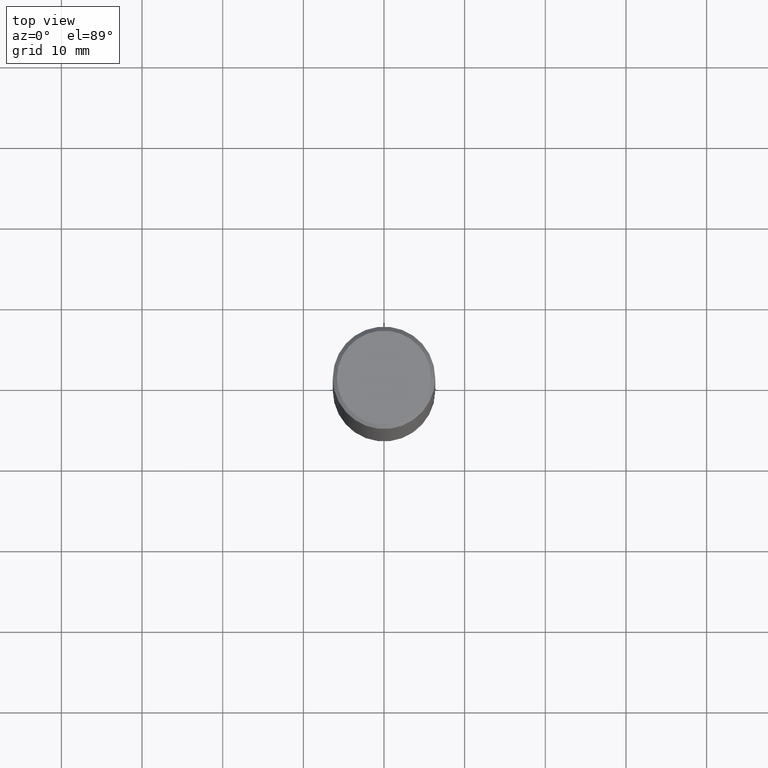
[diagram: clean part render]
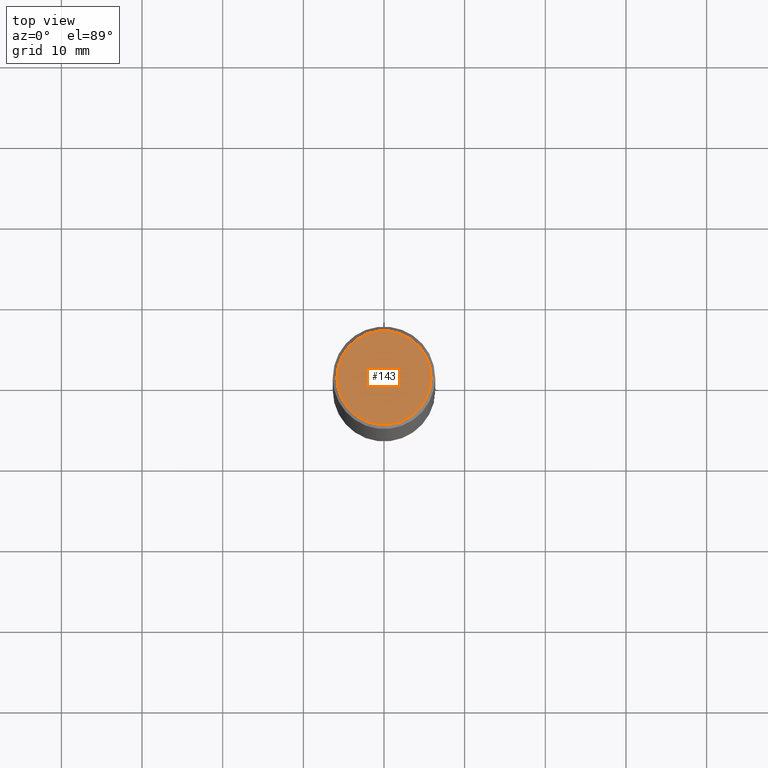
[diagram: same view with one face highlighted and labeled with its STEP entity id]
A machine part, top view. The second image highlights one B-rep face of the part: STEP entity #143.
In plain terms, the highlighted planar face has unit normal (0, -0, -1).
Its self-contained STEP definition (entity closure, byte-faithful):
#32 = DIRECTION ( 'NONE',  ( -1.000000000000000000, 6.982962677686265922E-15, -4.876176775795935793E-29 ) ) ;
#36 = VERTEX_POINT ( 'NONE', #276 ) ;
#58 = AXIS2_PLACEMENT_3D ( 'NONE', #154, #242, #124 ) ;
#60 = FACE_OUTER_BOUND ( 'NONE', #361, .T. ) ;
#62 = DIRECTION ( 'NONE',  ( -2.445468806185136597E-29, 3.491481338843145583E-15, 1.000000000000000000 ) ) ;
#80 = EDGE_CURVE ( 'NONE', #36, #96, #256, .T. ) ;
#89 = CARTESIAN_POINT ( 'NONE',  ( 0.2299999999999997602, -1.681434332853597631E-15, 4.268512490111905999E-18 ) ) ;
#90 = CIRCLE ( 'NONE', #58, 0.2299999999999997602 ) ;
#91 = CARTESIAN_POINT ( 'NONE',  ( -1.043851414335219820E-46, 1.490343170380447200E-32, 4.268512490100411279E-18 ) ) ;
#96 = VERTEX_POINT ( 'NONE', #89 ) ;
#118 = AXIS2_PLACEMENT_3D ( 'NONE', #173, #174, #32 ) ;
#124 = DIRECTION ( 'NONE',  ( 1.000000000000000000, -6.982962677686267499E-15, 4.876225828469313926E-29 ) ) ;
#143 = ADVANCED_FACE ( 'NONE', ( #60 ), #366, .F. ) ;
#149 = AXIS2_PLACEMENT_3D ( 'NONE', #91, #62, #340 ) ;
#154 = CARTESIAN_POINT ( 'NONE',  ( -1.043851414335219820E-46, 1.490343170380447200E-32, 4.268512490100411279E-18 ) ) ;
#173 = CARTESIAN_POINT ( 'NONE',  ( 1.606081415867839490E-15, 0.2299999999999997602, -8.009064516888724897E-16 ) ) ;
#174 = DIRECTION ( 'NONE',  ( 2.438088387897960049E-29, -3.491481338843145188E-15, -1.000000000000000000 ) ) ;
#185 = ORIENTED_EDGE ( 'NONE', *, *, #80, .T. ) ;
#242 = DIRECTION ( 'NONE',  ( -2.445468806185136597E-29, 3.491481338843145583E-15, 1.000000000000000000 ) ) ;
#252 = ORIENTED_EDGE ( 'NONE', *, *, #285, .T. ) ;
#256 = CIRCLE ( 'NONE', #149, 0.2299999999999997602 ) ;
#276 = CARTESIAN_POINT ( 'NONE',  ( -0.2299999999999997602, 1.640996229256270941E-15, 4.268512490089056766E-18 ) ) ;
#285 = EDGE_CURVE ( 'NONE', #96, #36, #90, .T. ) ;
#340 = DIRECTION ( 'NONE',  ( 1.000000000000000000, -6.982962677686267499E-15, 4.876225828469313926E-29 ) ) ;
#361 = EDGE_LOOP ( 'NONE', ( #185, #252 ) ) ;
#366 = PLANE ( 'NONE',  #118 ) ;